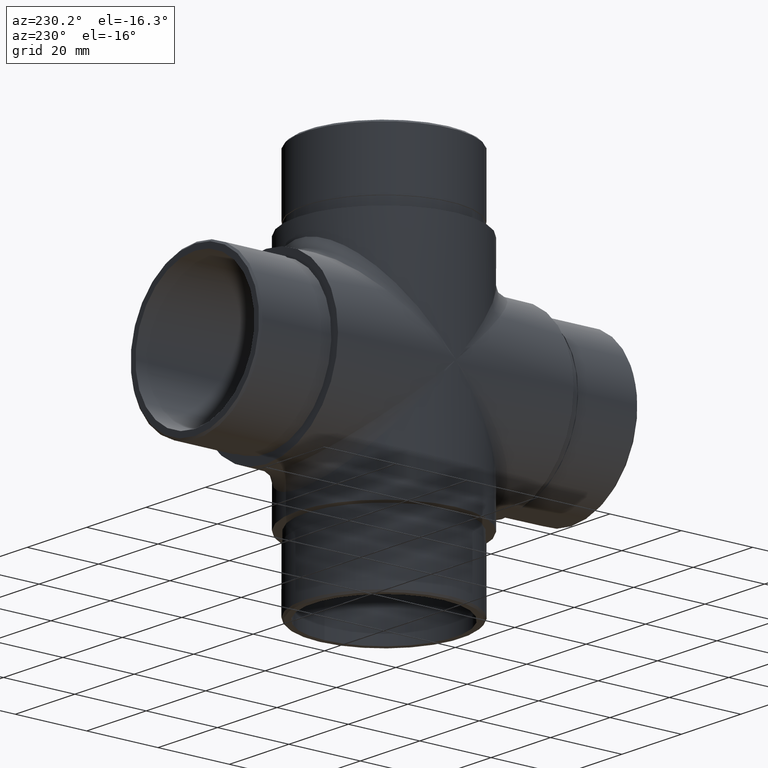
[diagram: clean part render]
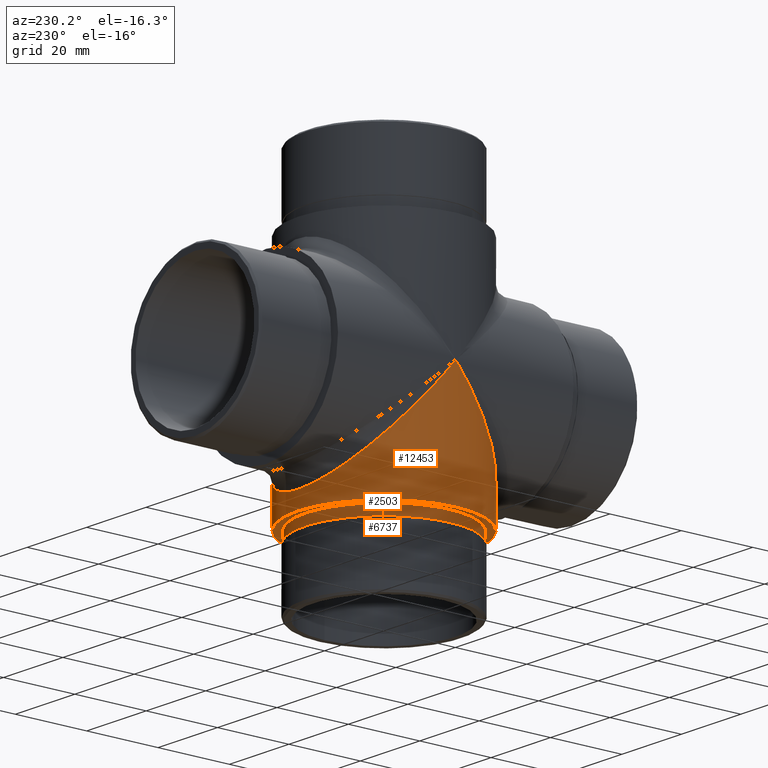
[diagram: same view with one multi-face feature highlighted, each face labeled with its STEP entity id]
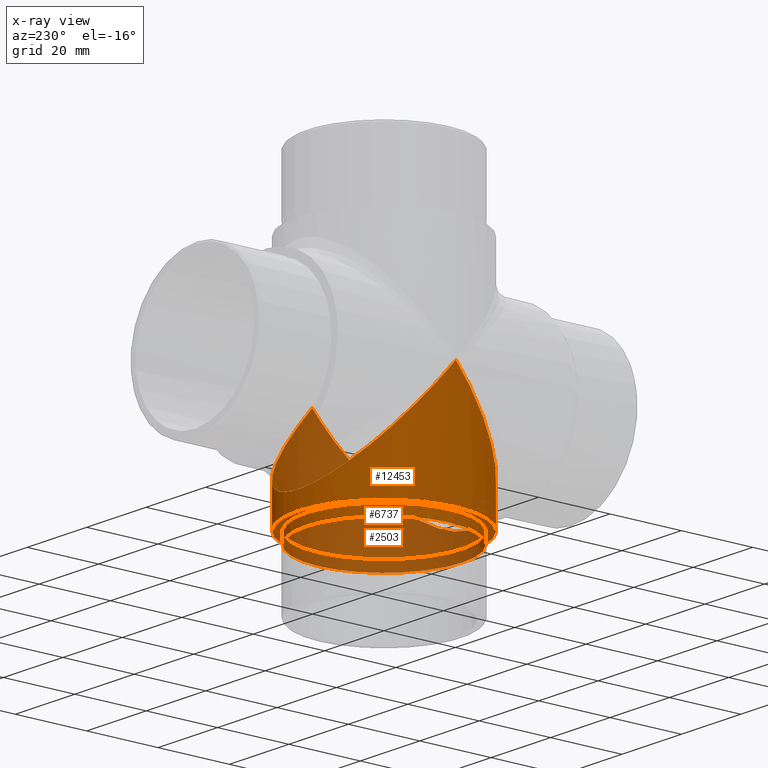
[diagram: x-ray of the same camera — body ghosted, the whole feature saturated]
A machine part, auxiliary view. The highlighted faces form ONE feature: a stepped (counterbored) hole: 2 coaxial cylindrical walls of radii 21.9 -> 24.15 mm joined by 1 annular planar shoulder face(s). The faces share edges in the B-rep.
The next image is the same camera in x-ray: the body ghosted and the whole hole feature saturated, so the bore chain is visible through the body.
Their STEP definitions:
[1] entity #12453 (Cylinder):
#229 = CARTESIAN_POINT ( 'NONE',  ( 24.14999999999999500, 48.30000000000001100, -56.30000000000000400 ) ) ;
#348 = ORIENTED_EDGE ( 'NONE', *, *, #1485, .T. ) ;
#1019 = ORIENTED_EDGE ( 'NONE', *, *, #2676, .T. ) ;
#1124 = VERTEX_POINT ( 'NONE', #10768 ) ;
#1482 = EDGE_LOOP ( 'NONE', ( #1019 ) ) ;
#1485 = EDGE_CURVE ( 'NONE', #8584, #1124, #9824, .T. ) ;
#1676 = CARTESIAN_POINT ( 'NONE',  ( 0.0000000000000000000, 0.0000000000000000000, 33.00000000000000000 ) ) ;
#1816 = DIRECTION ( 'NONE',  ( -1.000000000000000000, 0.0000000000000000000, 0.0000000000000000000 ) ) ;
#2676 = EDGE_CURVE ( 'NONE', #2746, #2746, #5795, .T. ) ;
#2746 = VERTEX_POINT ( 'NONE', #3227 ) ;
#3037 = AXIS2_PLACEMENT_3D ( 'NONE', #1676, #4681, #1816 ) ;
#3227 = CARTESIAN_POINT ( 'NONE',  ( 24.15000000000000600, 0.0000000000000000000, -33.00000000000000000 ) ) ;
#3673 = FACE_OUTER_BOUND ( 'NONE', #1482, .T. ) ;
#4004 = CARTESIAN_POINT ( 'NONE',  ( -24.15000000000000600, 0.0000000000000000000, 0.0000000000000000000 ) ) ;
#4681 = DIRECTION ( 'NONE',  ( -0.0000000000000000000, -0.0000000000000000000, -1.000000000000000000 ) ) ;
#4719 = DIRECTION ( 'NONE',  ( 0.0000000000000000000, 0.0000000000000000000, 1.000000000000000000 ) ) ;
#4846 = CARTESIAN_POINT ( 'NONE',  ( 0.0000000000000000000, 0.0000000000000000000, -33.00000000000000000 ) ) ;
#4920 = CARTESIAN_POINT ( 'NONE',  ( 24.15000000000000600, 0.0000000000000000000, 0.0000000000000000000 ) ) ;
#5228 = CYLINDRICAL_SURFACE ( 'NONE', #3037, 24.15000000000000600 ) ;
#5437 = CARTESIAN_POINT ( 'NONE',  ( 24.15000000000000600, 0.0000000000000000000, 0.0000000000000000000 ) ) ;
#5727 = DIRECTION ( 'NONE',  ( 1.000000000000000000, 0.0000000000000000000, 0.0000000000000000000 ) ) ;
#5795 = CIRCLE ( 'NONE', #7336, 24.15000000000000600 ) ;
#6878 = EDGE_CURVE ( 'NONE', #1124, #8584, #8796, .T. ) ;
#7008 = CARTESIAN_POINT ( 'NONE',  ( -24.15000000000000600, 0.0000000000000000000, 0.0000000000000000000 ) ) ;
#7336 = AXIS2_PLACEMENT_3D ( 'NONE', #4846, #4719, #5727 ) ;
#8014 = EDGE_LOOP ( 'NONE', ( #348, #9564 ) ) ;
#8291 = CARTESIAN_POINT ( 'NONE',  ( 24.15000000000000900, -48.29999999999999700, -56.29999999999999000 ) ) ;
#8584 = VERTEX_POINT ( 'NONE', #11314 ) ;
#8796 =( BOUNDED_CURVE ( )  B_SPLINE_CURVE ( 3, ( #7008, #9889, #229, #4920 ),
 .UNSPECIFIED., .F., .T. ) 
 B_SPLINE_CURVE_WITH_KNOTS ( ( 4, 4 ),
 ( 4.712388980384689700, 7.853981633974482800 ),
 .UNSPECIFIED. ) 
 CURVE ( )  GEOMETRIC_REPRESENTATION_ITEM ( )  RATIONAL_B_SPLINE_CURVE ( ( 1.000000000000000000, 0.3333333333333333700, 0.3333333333333333700, 1.000000000000000000 ) ) 
 REPRESENTATION_ITEM ( '' )  );
#9265 = CARTESIAN_POINT ( 'NONE',  ( -24.14999999999999500, -48.30000000000001100, -56.30000000000000400 ) ) ;
#9564 = ORIENTED_EDGE ( 'NONE', *, *, #6878, .T. ) ;
#9824 =( BOUNDED_CURVE ( )  B_SPLINE_CURVE ( 3, ( #5437, #8291, #9265, #4004 ),
 .UNSPECIFIED., .F., .F. ) 
 B_SPLINE_CURVE_WITH_KNOTS ( ( 4, 4 ),
 ( 4.712388980384689700, 7.853981633974482800 ),
 .UNSPECIFIED. ) 
 CURVE ( )  GEOMETRIC_REPRESENTATION_ITEM ( )  RATIONAL_B_SPLINE_CURVE ( ( 1.000000000000000000, 0.3333333333333333700, 0.3333333333333333700, 1.000000000000000000 ) ) 
 REPRESENTATION_ITEM ( '' )  );
#9889 = CARTESIAN_POINT ( 'NONE',  ( -24.15000000000000900, 48.29999999999999700, -56.29999999999999000 ) ) ;
#10741 = FACE_OUTER_BOUND ( 'NONE', #8014, .T. ) ;
#10768 = CARTESIAN_POINT ( 'NONE',  ( -24.15000000000000600, 0.0000000000000000000, 0.0000000000000000000 ) ) ;
#11314 = CARTESIAN_POINT ( 'NONE',  ( 24.15000000000000600, 0.0000000000000000000, 0.0000000000000000000 ) ) ;
#12453 = ADVANCED_FACE ( 'NONE', ( #3673, #10741 ), #5228, .T. ) ;
[2] entity #2503 (Cylinder):
#455 = ORIENTED_EDGE ( 'NONE', *, *, #4579, .T. ) ;
#494 = AXIS2_PLACEMENT_3D ( 'NONE', #3852, #11670, #11757 ) ;
#1137 = CARTESIAN_POINT ( 'NONE',  ( -21.89999999999999900, 0.0000000000000000000, -36.00000000000000700 ) ) ;
#1764 = CARTESIAN_POINT ( 'NONE',  ( 0.0000000000000000000, 0.0000000000000000000, -36.00000000000000700 ) ) ;
#2503 = ADVANCED_FACE ( 'NONE', ( #12382, #4149 ), #2894, .T. ) ;
#2822 = DIRECTION ( 'NONE',  ( -1.000000000000000000, 0.0000000000000000000, 0.0000000000000000000 ) ) ;
#2894 = CYLINDRICAL_SURFACE ( 'NONE', #5371, 21.89999999999999900 ) ;
#3785 = EDGE_LOOP ( 'NONE', ( #10099 ) ) ;
#3852 = CARTESIAN_POINT ( 'NONE',  ( 0.0000000000000000000, 0.0000000000000000000, -33.00000000000000000 ) ) ;
#4089 = EDGE_LOOP ( 'NONE', ( #455 ) ) ;
#4149 = FACE_OUTER_BOUND ( 'NONE', #3785, .T. ) ;
#4183 = CARTESIAN_POINT ( 'NONE',  ( 0.0000000000000000000, 0.0000000000000000000, -36.00000000000000700 ) ) ;
#4579 = EDGE_CURVE ( 'NONE', #5508, #5508, #9355, .T. ) ;
#5282 = DIRECTION ( 'NONE',  ( 1.000000000000000000, 0.0000000000000000000, 0.0000000000000000000 ) ) ;
#5371 = AXIS2_PLACEMENT_3D ( 'NONE', #4183, #6133, #5282 ) ;
#5508 = VERTEX_POINT ( 'NONE', #1137 ) ;
#6133 = DIRECTION ( 'NONE',  ( -0.0000000000000000000, -0.0000000000000000000, 1.000000000000000000 ) ) ;
#6420 = AXIS2_PLACEMENT_3D ( 'NONE', #1764, #9605, #2822 ) ;
#7050 = VERTEX_POINT ( 'NONE', #7983 ) ;
#7983 = CARTESIAN_POINT ( 'NONE',  ( 21.89999999999999900, 0.0000000000000000000, -33.00000000000000000 ) ) ;
#9355 = CIRCLE ( 'NONE', #6420, 21.89999999999999900 ) ;
#9605 = DIRECTION ( 'NONE',  ( -0.0000000000000000000, -0.0000000000000000000, 1.000000000000000000 ) ) ;
#10012 = CIRCLE ( 'NONE', #494, 21.89999999999999900 ) ;
#10099 = ORIENTED_EDGE ( 'NONE', *, *, #10416, .F. ) ;
#10416 = EDGE_CURVE ( 'NONE', #7050, #7050, #10012, .T. ) ;
#11670 = DIRECTION ( 'NONE',  ( -0.0000000000000000000, -0.0000000000000000000, 1.000000000000000000 ) ) ;
#11757 = DIRECTION ( 'NONE',  ( 1.000000000000000000, 0.0000000000000000000, 0.0000000000000000000 ) ) ;
#12382 = FACE_OUTER_BOUND ( 'NONE', #4089, .T. ) ;
[3] entity #6737 (Plane):
#494 = AXIS2_PLACEMENT_3D ( 'NONE', #3852, #11670, #11757 ) ;
#1782 = EDGE_LOOP ( 'NONE', ( #4444 ) ) ;
#1790 = DIRECTION ( 'NONE',  ( 0.0000000000000000000, 0.0000000000000000000, 1.000000000000000000 ) ) ;
#2676 = EDGE_CURVE ( 'NONE', #2746, #2746, #5795, .T. ) ;
#2746 = VERTEX_POINT ( 'NONE', #3227 ) ;
#3227 = CARTESIAN_POINT ( 'NONE',  ( 24.15000000000000600, 0.0000000000000000000, -33.00000000000000000 ) ) ;
#3770 = FACE_BOUND ( 'NONE', #6579, .T. ) ;
#3852 = CARTESIAN_POINT ( 'NONE',  ( 0.0000000000000000000, 0.0000000000000000000, -33.00000000000000000 ) ) ;
#4444 = ORIENTED_EDGE ( 'NONE', *, *, #2676, .F. ) ;
#4719 = DIRECTION ( 'NONE',  ( 0.0000000000000000000, 0.0000000000000000000, 1.000000000000000000 ) ) ;
#4819 = AXIS2_PLACEMENT_3D ( 'NONE', #11623, #1790, #7784 ) ;
#4846 = CARTESIAN_POINT ( 'NONE',  ( 0.0000000000000000000, 0.0000000000000000000, -33.00000000000000000 ) ) ;
#5005 = FACE_OUTER_BOUND ( 'NONE', #1782, .T. ) ;
#5727 = DIRECTION ( 'NONE',  ( 1.000000000000000000, 0.0000000000000000000, 0.0000000000000000000 ) ) ;
#5795 = CIRCLE ( 'NONE', #7336, 24.15000000000000600 ) ;
#6579 = EDGE_LOOP ( 'NONE', ( #6676 ) ) ;
#6676 = ORIENTED_EDGE ( 'NONE', *, *, #10416, .T. ) ;
#6737 = ADVANCED_FACE ( 'NONE', ( #3770, #5005 ), #11485, .F. ) ;
#7050 = VERTEX_POINT ( 'NONE', #7983 ) ;
#7336 = AXIS2_PLACEMENT_3D ( 'NONE', #4846, #4719, #5727 ) ;
#7784 = DIRECTION ( 'NONE',  ( 1.000000000000000000, 0.0000000000000000000, -0.0000000000000000000 ) ) ;
#7983 = CARTESIAN_POINT ( 'NONE',  ( 21.89999999999999900, 0.0000000000000000000, -33.00000000000000000 ) ) ;
#10012 = CIRCLE ( 'NONE', #494, 21.89999999999999900 ) ;
#10416 = EDGE_CURVE ( 'NONE', #7050, #7050, #10012, .T. ) ;
#11485 = PLANE ( 'NONE',  #4819 ) ;
#11623 = CARTESIAN_POINT ( 'NONE',  ( 0.0000000000000000000, 0.0000000000000000000, -33.00000000000000000 ) ) ;
#11670 = DIRECTION ( 'NONE',  ( -0.0000000000000000000, -0.0000000000000000000, 1.000000000000000000 ) ) ;
#11757 = DIRECTION ( 'NONE',  ( 1.000000000000000000, 0.0000000000000000000, 0.0000000000000000000 ) ) ;